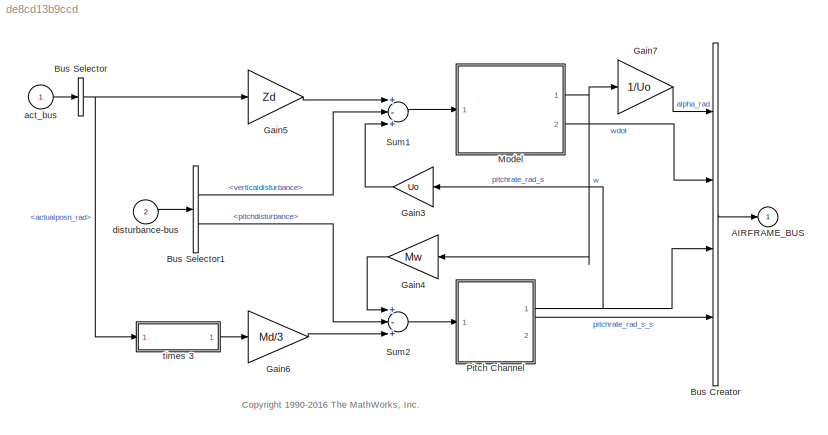
MODEL slx_de8cd13b9ccd
KIND model
CONFIG AbsTol = auto
CONFIG EnableMultiTasking = on
CONFIG FixedStep = auto
CONFIG MaxStep = 0.1
CONFIG MinStep = auto
CONFIG RelTol = 1e-3
CONFIG SampleTimeConstraint = Unconstrained
CONFIG Solver = ode45
CONFIG SolverName = ode45
CONFIG StartTime = 0.0
CONFIG StopTime = 10.0
BLOCK [Outport] AIRFRAME_BUS
  BusOutputAsStruct = on
  IconDisplay = Port number
  InitialOutput = 0
  OutDataTypeStr = Bus: AIRFRAME_BUS
BLOCK [BusCreator] Bus Creator
  DisplayOption = bar
  InheritFromInputs = on
  Inputs = 'alpha_rad','wdot','pitchrate_rad_s','pitchrate_rad_s_s'
  OutDataTypeStr = Bus: AIRFRAME_BUS
  Ports = [4, 1]
BLOCK [BusSelector] Bus Selector
  OutputAsBus = off
  OutputSignals = actualposn_rad
  Ports = [1, 1]
BLOCK [BusSelector] Bus Selector1
  OutputAsBus = off
  OutputSignals = verticaldisturbance,pitchdisturbance
  Ports = [1, 2]
BLOCK [Gain] Gain3
  Gain = Uo
BLOCK [Gain] Gain4
  Gain = Mw
BLOCK [Gain] Gain5
  Gain = Zd
BLOCK [Gain] Gain6
  Gain = Md/3
BLOCK [Gain] Gain7
  Gain = 1/Uo
BLOCK [ModelReference] Model
  ModelNameDialog = vertical_channel
  ModelReferenceVersion = 1.15
  Ports = [1, 2]
  Variant = off
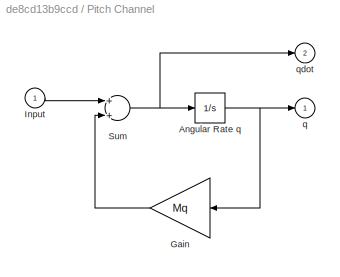
BLOCK [SubSystem] Pitch Channel
  Ports = [1, 2]
  RequestExecContextInheritance = off
  Variant = off
BLOCK [Integrator] Pitch Channel/Angular Rate q 
  Ports = [1, 1]
BLOCK [Gain] Pitch Channel/Gain
  Gain = Mq
BLOCK [Inport] Pitch Channel/Input
  IconDisplay = Port number
BLOCK [Sum] Pitch Channel/Sum
  Ports = [2, 1]
BLOCK [Outport] Pitch Channel/q
  IconDisplay = Port number
BLOCK [Outport] Pitch Channel/qdot
  IconDisplay = Port number
  Port = 2
BLOCK [Sum] Sum1
  Inputs = +-+
  Ports = [3, 1]
BLOCK [Sum] Sum2
  Inputs = +-+
  Ports = [3, 1]
BLOCK [Inport] act_bus
  IconDisplay = Port number
  OutDataTypeStr = Bus: ACT_BUS
BLOCK [Inport] disturbance-bus
  IconDisplay = Port number
  OutDataTypeStr = Bus: DISTURB_BUS
  Port = 2
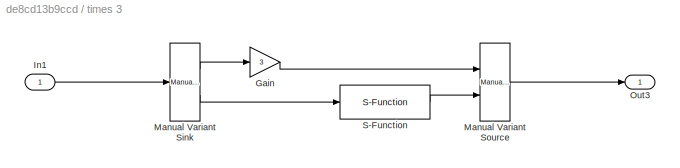
BLOCK [SubSystem] times 3 
  Ports = [1, 1]
  RequestExecContextInheritance = off
  Variant = off
BLOCK [Gain] times 3 /Gain
  Gain = 3
  OutDataTypeStr = Inherit: Inherit via internal rule
  ParamDataTypeStr = Inherit: Inherit via internal rule
  SaturateOnIntegerOverflow = off
BLOCK [Inport] times 3 /In1
  IconDisplay = Port number
BLOCK [Reference] times 3 /Manual Variant Sink  REF=simulink/Signal
Routing/Manual
Variant Sink
  Ports = [1, 2]
  SourceBlock = simulink/Signal\nRouting/Manual\nVariant Sink
  SourceProductBaseCode = SL
  SourceProductName = Simulink
  SourceType = ManualVariantSink
BLOCK [Reference] times 3 /Manual Variant Source  REF=simulink/Signal
Routing/Manual
Variant Source
  Ports = [2, 1]
  SourceBlock = simulink/Signal\nRouting/Manual\nVariant Source
  SourceProductBaseCode = SL
  SourceProductName = Simulink
  SourceType = ManualVariantSource
BLOCK [Outport] times 3 /Out3
  IconDisplay = Port number
BLOCK [S-Function] times 3 /S-Function
  EnableBusSupport = off
  FunctionName = timesthree
  Ports = [1, 1]
  SFcnIsStateOwnerBlock = off
  SFunctionDeploymentMode = off
ANNOTATION (root): <copyright redacted>
LINE Bus Creator:1 -> AIRFRAME_BUS:1
LINE Bus Selector1:1 -> Sum1:2
LINE Bus Selector1:2 -> Sum2:2
NET Bus Selector:1 -> Gain5:1, times 3 :1
LINE Gain3:1 -> Sum1:3
LINE Gain4:1 -> Sum2:1
LINE Gain5:1 -> Sum1:1
LINE Gain6:1 -> Sum2:3
LINE Gain7:1 -> Bus Creator:1
NET Model:1 -> Gain4:1, Gain7:1
LINE Model:2 -> Bus Creator:2
NET Pitch Channel/Angular Rate q :1 -> Pitch Channel/Gain:1, Pitch Channel/q:1
LINE Pitch Channel/Gain:1 -> Pitch Channel/Sum:2
LINE Pitch Channel/Input:1 -> Pitch Channel/Sum:1
NET Pitch Channel/Sum:1 -> Pitch Channel/Angular Rate q :1, Pitch Channel/qdot:1
NET Pitch Channel:1 -> Bus Creator:3, Gain3:1
LINE Pitch Channel:2 -> Bus Creator:4
LINE Sum1:1 -> Model:1
LINE Sum2:1 -> Pitch Channel:1
LINE act_bus:1 -> Bus Selector:1
LINE disturbance-bus:1 -> Bus Selector1:1
LINE times 3 /Gain:1 -> times 3 /Manual Variant Source:1
LINE times 3 /In1:1 -> times 3 /Manual Variant Sink:1
LINE times 3 /Manual Variant Sink:1 -> times 3 /Gain:1
LINE times 3 /Manual Variant Sink:2 -> times 3 /S-Function:1
LINE times 3 /Manual Variant Source:1 -> times 3 /Out3:1
LINE times 3 /S-Function:1 -> times 3 /Manual Variant Source:2
LINE times 3 :1 -> Gain6:1
note: NET lines group one-source signal fan-out (src -> all destinations, sorted); 1:1 wires keep LINE
